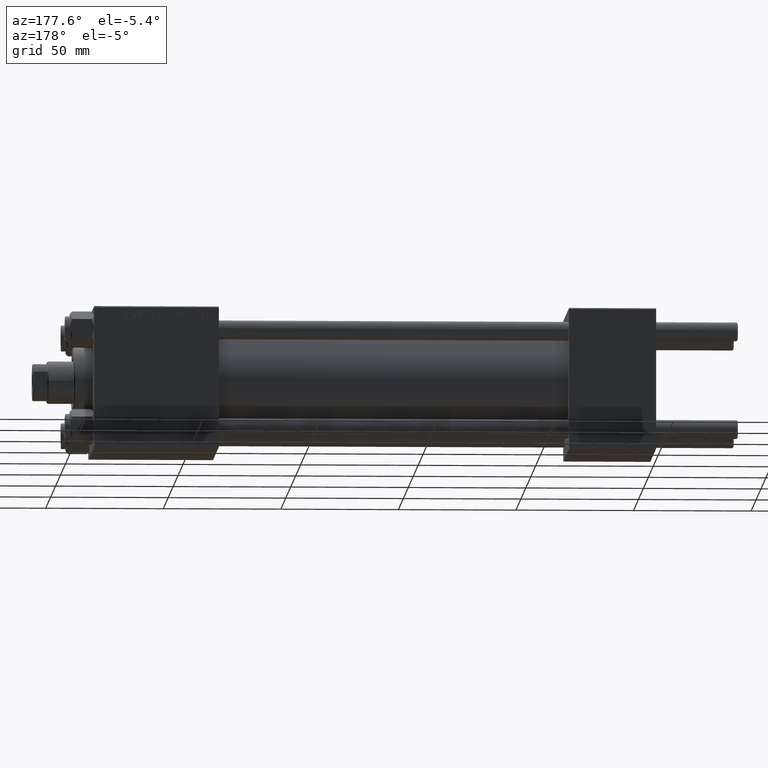
[diagram: clean part render]
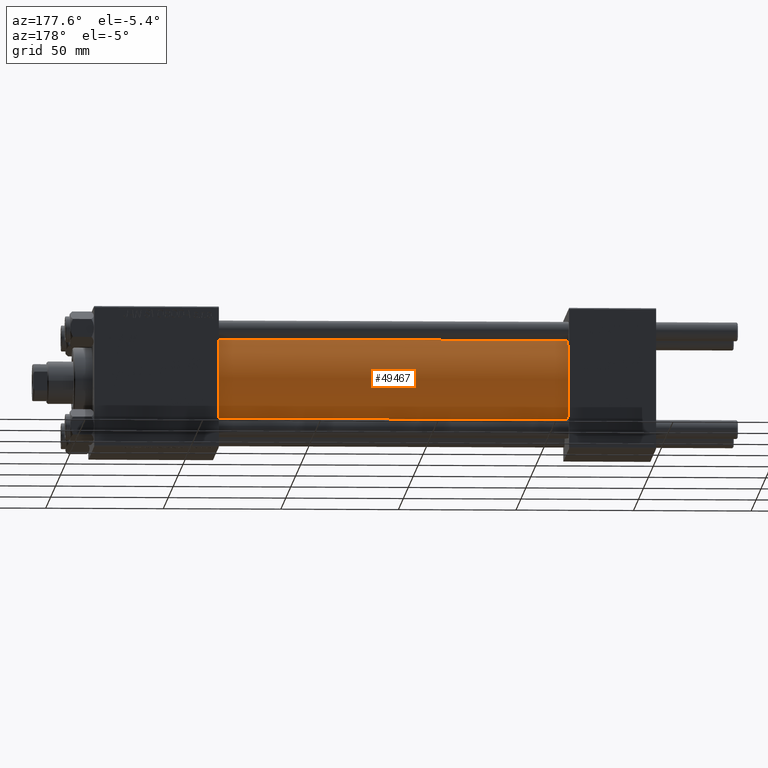
[diagram: same view with one face highlighted and labeled with its STEP entity id]
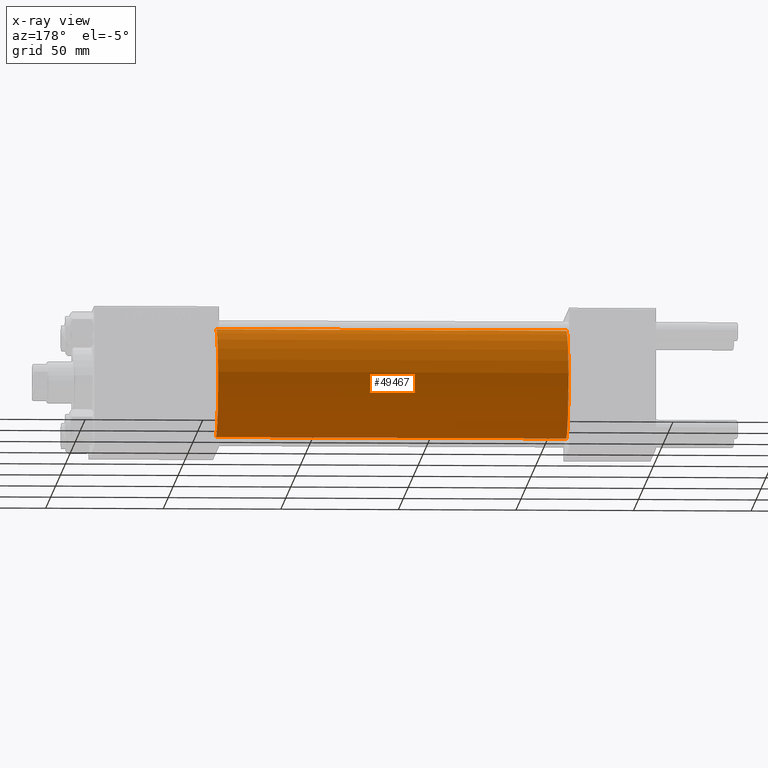
[diagram: x-ray of the same camera — body ghosted, the highlighted face saturated]
A machine part, auxiliary view. The second image highlights one B-rep face of the part: STEP entity #49467.
The next image is the same camera in x-ray: the body ghosted, the highlighted face saturated — about 0% of this face is hidden behind the body in this view.
In plain terms, the highlighted cylindrical surface (partial cylindrical patch) has radius 23 mm, axis along (-1, -0, -0).
Its self-contained STEP definition (entity closure, byte-faithful):
#292 = DIRECTION ( 'NONE',  ( 1.000000000000000000, 0.000000000000000000, 0.000000000000000000 ) ) ;
#990 = EDGE_CURVE ( 'NONE', #2170, #46049, #40825, .T. ) ;
#2170 = VERTEX_POINT ( 'NONE', #15764 ) ;
#3229 = AXIS2_PLACEMENT_3D ( 'NONE', #45059, #37499, #28938 ) ;
#5974 = DIRECTION ( 'NONE',  ( 0.000000000000000000, 0.000000000000000000, 1.000000000000000000 ) ) ;
#7467 = CARTESIAN_POINT ( 'NONE',  ( 37.00000000000000711, 0.000000000000000000, 23.00000000000000000 ) ) ;
#9301 = CARTESIAN_POINT ( 'NONE',  ( 186.0000000000000000, 0.000000000000000000, 23.00000000000000000 ) ) ;
#10491 = CYLINDRICAL_SURFACE ( 'NONE', #16901, 23.00000000000000000 ) ;
#15764 = CARTESIAN_POINT ( 'NONE',  ( 186.0000000000000000, 2.816687638038912352E-15, -23.00000000000000000 ) ) ;
#15802 = VERTEX_POINT ( 'NONE', #40473 ) ;
#16143 = EDGE_CURVE ( 'NONE', #2170, #15802, #42829, .T. ) ;
#16901 = AXIS2_PLACEMENT_3D ( 'NONE', #17825, #37262, #5974 ) ;
#17825 = CARTESIAN_POINT ( 'NONE',  ( 186.0000000000000000, 0.000000000000000000, 0.000000000000000000 ) ) ;
#19032 = VERTEX_POINT ( 'NONE', #7467 ) ;
#19335 = CIRCLE ( 'NONE', #3229, 23.00000000000000000 ) ;
#21268 = ORIENTED_EDGE ( 'NONE', *, *, #38885, .F. ) ;
#21850 = EDGE_LOOP ( 'NONE', ( #26149, #46805, #48280, #21268 ) ) ;
#26149 = ORIENTED_EDGE ( 'NONE', *, *, #990, .F. ) ;
#27523 = DIRECTION ( 'NONE',  ( 0.000000000000000000, 0.000000000000000000, -1.000000000000000000 ) ) ;
#28938 = DIRECTION ( 'NONE',  ( 0.000000000000000000, 0.000000000000000000, 1.000000000000000000 ) ) ;
#29232 = DIRECTION ( 'NONE',  ( -1.000000000000000000, -0.000000000000000000, -0.000000000000000000 ) ) ;
#29710 = CARTESIAN_POINT ( 'NONE',  ( 186.0000000000000000, 0.000000000000000000, 23.00000000000000000 ) ) ;
#32735 = VECTOR ( 'NONE', #38063, 1000.000000000000000 ) ;
#34593 = CARTESIAN_POINT ( 'NONE',  ( 186.0000000000000000, 0.000000000000000000, 0.000000000000000000 ) ) ;
#36748 = FACE_OUTER_BOUND ( 'NONE', #21850, .T. ) ;
#37262 = DIRECTION ( 'NONE',  ( -1.000000000000000000, -0.000000000000000000, -0.000000000000000000 ) ) ;
#37499 = DIRECTION ( 'NONE',  ( 1.000000000000000000, -0.000000000000000000, 0.000000000000000000 ) ) ;
#38063 = DIRECTION ( 'NONE',  ( -1.000000000000000000, -0.000000000000000000, -0.000000000000000000 ) ) ;
#38885 = EDGE_CURVE ( 'NONE', #46049, #19032, #40348, .T. ) ;
#40348 = LINE ( 'NONE', #9301, #47831 ) ;
#40473 = CARTESIAN_POINT ( 'NONE',  ( 37.00000000000000711, 2.816687638038912352E-15, -23.00000000000000000 ) ) ;
#40825 = CIRCLE ( 'NONE', #49719, 23.00000000000000000 ) ;
#42829 = LINE ( 'NONE', #46616, #32735 ) ;
#45059 = CARTESIAN_POINT ( 'NONE',  ( 37.00000000000000711, 0.000000000000000000, 0.000000000000000000 ) ) ;
#46049 = VERTEX_POINT ( 'NONE', #29710 ) ;
#46616 = CARTESIAN_POINT ( 'NONE',  ( 186.0000000000000000, 2.816687638038912352E-15, -23.00000000000000000 ) ) ;
#46805 = ORIENTED_EDGE ( 'NONE', *, *, #16143, .T. ) ;
#47831 = VECTOR ( 'NONE', #29232, 1000.000000000000000 ) ;
#48280 = ORIENTED_EDGE ( 'NONE', *, *, #49428, .T. ) ;
#49428 = EDGE_CURVE ( 'NONE', #15802, #19032, #19335, .T. ) ;
#49467 = ADVANCED_FACE ( 'NONE', ( #36748 ), #10491, .T. ) ;
#49719 = AXIS2_PLACEMENT_3D ( 'NONE', #34593, #292, #27523 ) ;